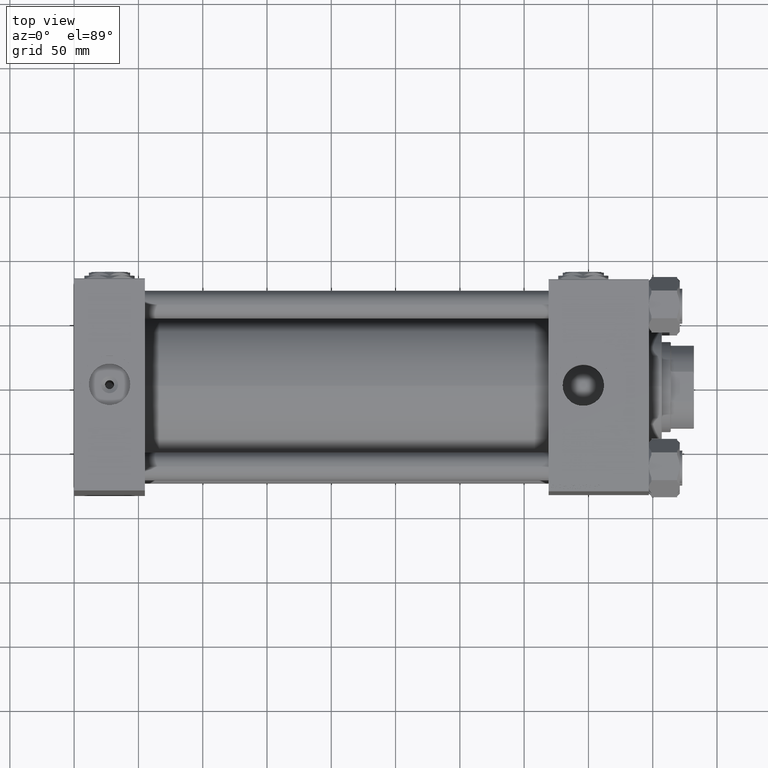
[diagram: clean part render]
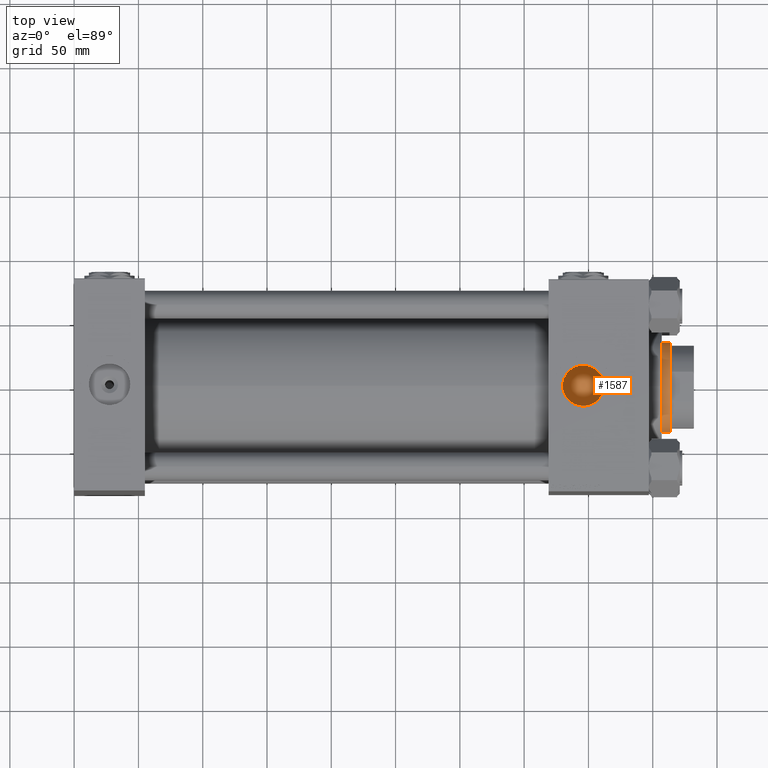
[diagram: same view with one face highlighted and labeled with its STEP entity id]
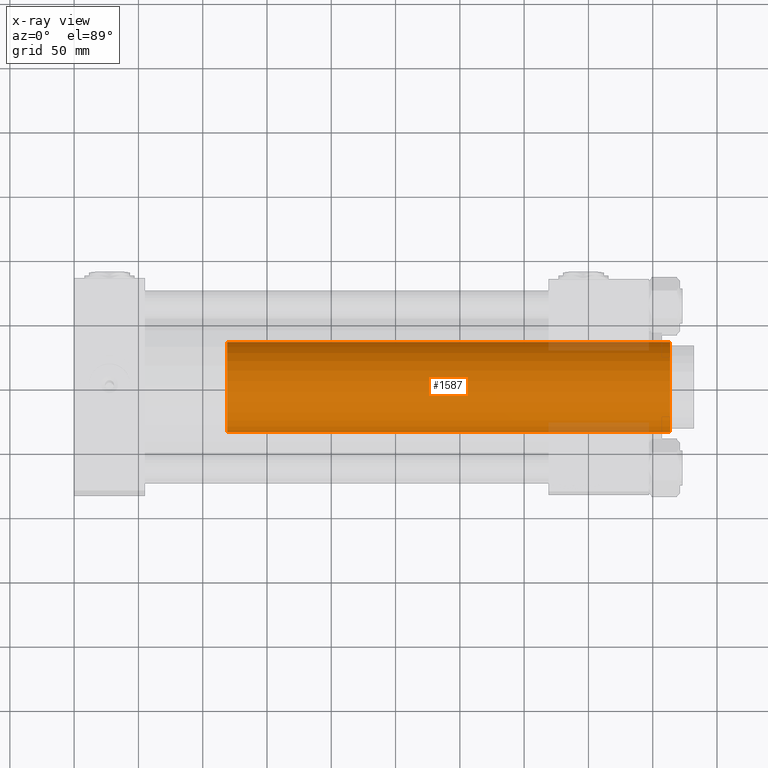
[diagram: x-ray of the same camera — body ghosted, the highlighted face saturated]
A machine part, top view. The second image highlights one B-rep face of the part: STEP entity #1587.
The next image is the same camera in x-ray: the body ghosted, the highlighted face saturated — about 5% of this face is hidden behind the body in this view.
In plain terms, the highlighted cylindrical surface (partial cylindrical patch) has radius 35 mm, axis along (-1, 0, 0).
Its self-contained STEP definition (entity closure, byte-faithful):
#589 = CARTESIAN_POINT ( 'NONE',  ( -35.00000000000000711, 0.000000000000000000, 408.4999999999998863 ) ) ;
#1587 = ADVANCED_FACE ( 'NONE', ( #39842 ), #24661, .T. ) ;
#2131 = EDGE_CURVE ( 'NONE', #12459, #19781, #25642, .T. ) ;
#4753 = CARTESIAN_POINT ( 'NONE',  ( 35.00000000000000711, 4.286263797015737285E-15, 409.0000000000000000 ) ) ;
#8170 = CARTESIAN_POINT ( 'NONE',  ( 0.000000000000000000, 0.000000000000000000, 64.00000000000000000 ) ) ;
#8475 = ORIENTED_EDGE ( 'NONE', *, *, #2131, .T. ) ;
#8872 = AXIS2_PLACEMENT_3D ( 'NONE', #20913, #33132, #49377 ) ;
#10949 = ORIENTED_EDGE ( 'NONE', *, *, #26481, .T. ) ;
#11861 = AXIS2_PLACEMENT_3D ( 'NONE', #8170, #27356, #19118 ) ;
#12459 = VERTEX_POINT ( 'NONE', #589 ) ;
#14004 = CIRCLE ( 'NONE', #8872, 35.00000000000000711 ) ;
#14711 = EDGE_CURVE ( 'NONE', #27568, #12459, #14004, .T. ) ;
#14857 = VERTEX_POINT ( 'NONE', #17969 ) ;
#17969 = CARTESIAN_POINT ( 'NONE',  ( 35.00000000000000711, 4.286263797015737285E-15, 64.00000000000000000 ) ) ;
#19118 = DIRECTION ( 'NONE',  ( 1.000000000000000000, 0.000000000000000000, 0.000000000000000000 ) ) ;
#19781 = VERTEX_POINT ( 'NONE', #21020 ) ;
#20215 = EDGE_LOOP ( 'NONE', ( #24657, #50505, #8475, #10949 ) ) ;
#20913 = CARTESIAN_POINT ( 'NONE',  ( 0.000000000000000000, 0.000000000000000000, 408.4999999999998863 ) ) ;
#21003 = DIRECTION ( 'NONE',  ( -0.000000000000000000, -0.000000000000000000, -1.000000000000000000 ) ) ;
#21020 = CARTESIAN_POINT ( 'NONE',  ( -35.00000000000000711, 0.000000000000000000, 64.00000000000000000 ) ) ;
#23012 = VECTOR ( 'NONE', #24862, 1000.000000000000000 ) ;
#24657 = ORIENTED_EDGE ( 'NONE', *, *, #46911, .F. ) ;
#24661 = CYLINDRICAL_SURFACE ( 'NONE', #38261, 35.00000000000000711 ) ;
#24862 = DIRECTION ( 'NONE',  ( -0.000000000000000000, -0.000000000000000000, -1.000000000000000000 ) ) ;
#25642 = LINE ( 'NONE', #45849, #23012 ) ;
#26481 = EDGE_CURVE ( 'NONE', #19781, #14857, #28839, .T. ) ;
#27356 = DIRECTION ( 'NONE',  ( 0.000000000000000000, 0.000000000000000000, 1.000000000000000000 ) ) ;
#27568 = VERTEX_POINT ( 'NONE', #40794 ) ;
#28655 = DIRECTION ( 'NONE',  ( -1.000000000000000000, 0.000000000000000000, 0.000000000000000000 ) ) ;
#28839 = CIRCLE ( 'NONE', #11861, 35.00000000000000711 ) ;
#32113 = DIRECTION ( 'NONE',  ( -0.000000000000000000, -0.000000000000000000, -1.000000000000000000 ) ) ;
#33132 = DIRECTION ( 'NONE',  ( 0.000000000000000000, 0.000000000000000000, -1.000000000000000000 ) ) ;
#36445 = LINE ( 'NONE', #4753, #40040 ) ;
#38261 = AXIS2_PLACEMENT_3D ( 'NONE', #48098, #32113, #28655 ) ;
#39842 = FACE_OUTER_BOUND ( 'NONE', #20215, .T. ) ;
#40040 = VECTOR ( 'NONE', #21003, 1000.000000000000000 ) ;
#40794 = CARTESIAN_POINT ( 'NONE',  ( 35.00000000000000711, 4.286263797015737285E-15, 408.4999999999998863 ) ) ;
#45849 = CARTESIAN_POINT ( 'NONE',  ( -35.00000000000000711, 0.000000000000000000, 409.0000000000000000 ) ) ;
#46911 = EDGE_CURVE ( 'NONE', #27568, #14857, #36445, .T. ) ;
#48098 = CARTESIAN_POINT ( 'NONE',  ( 0.000000000000000000, 0.000000000000000000, 409.0000000000000000 ) ) ;
#49377 = DIRECTION ( 'NONE',  ( 1.000000000000000000, 0.000000000000000000, 0.000000000000000000 ) ) ;
#50505 = ORIENTED_EDGE ( 'NONE', *, *, #14711, .T. ) ;